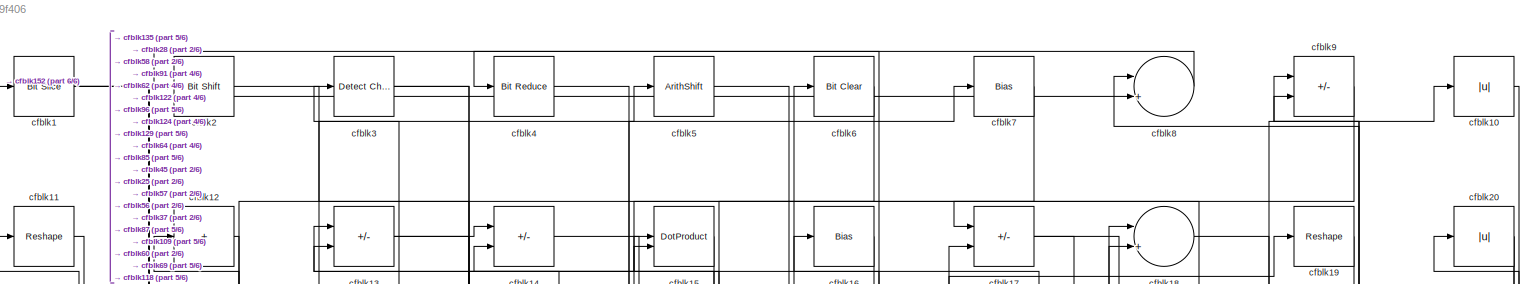
[diagram: root canvas - part 1/6, full width, top band]
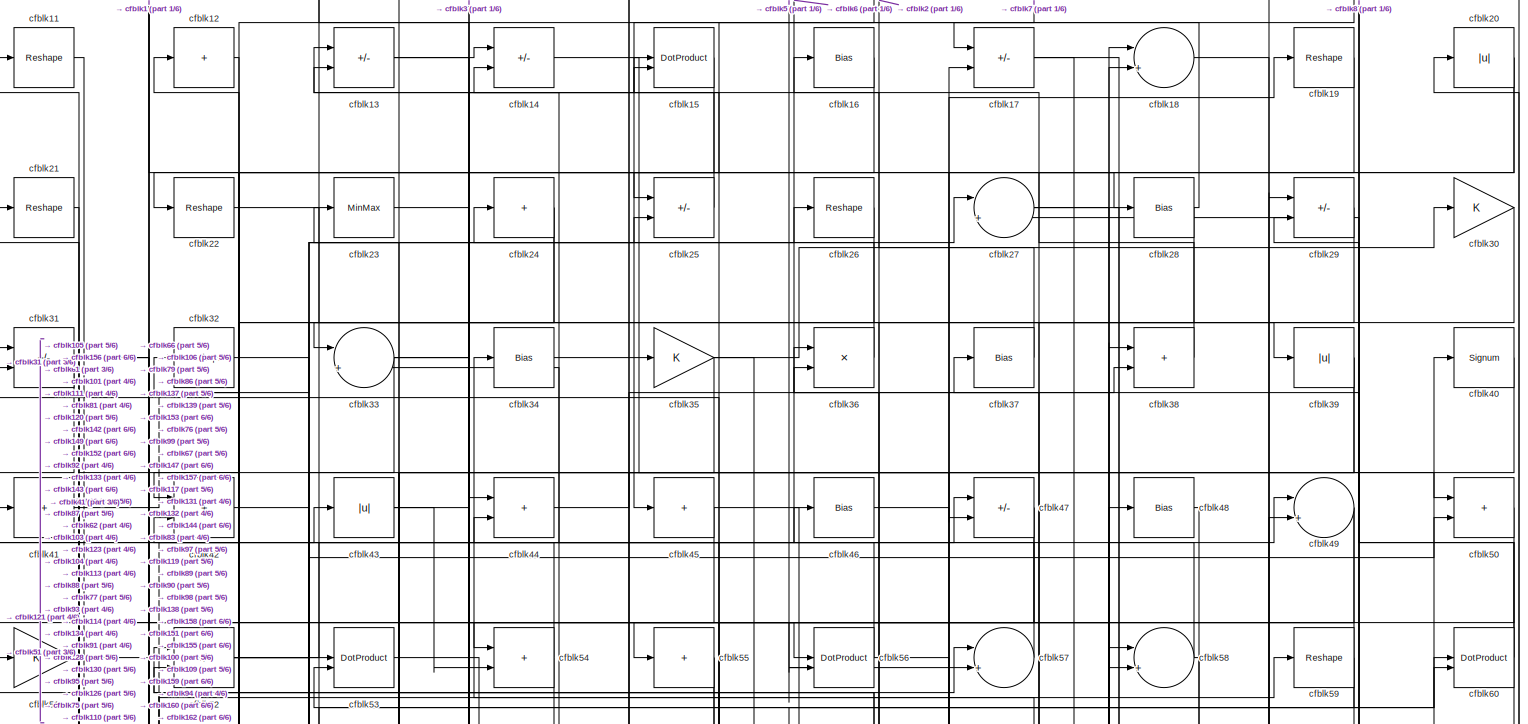
[diagram: root canvas - part 2/6, full width, top band]
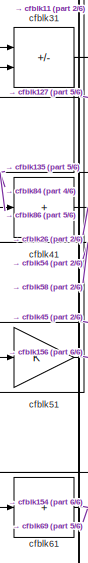
[diagram: root canvas - part 3/6, top left region]
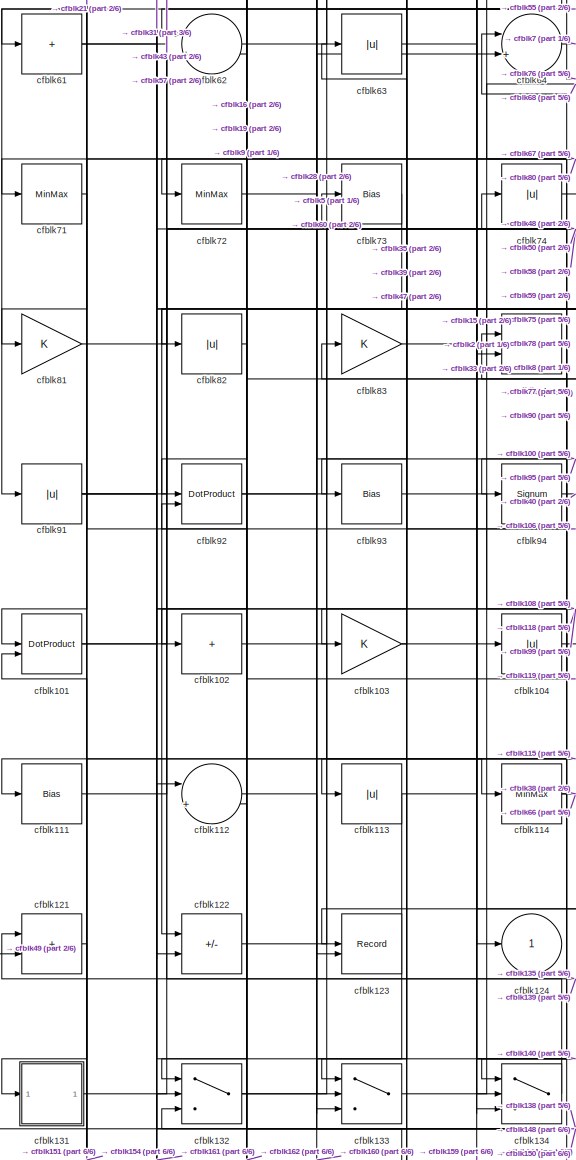
[diagram: root canvas - part 4/6, middle left region]
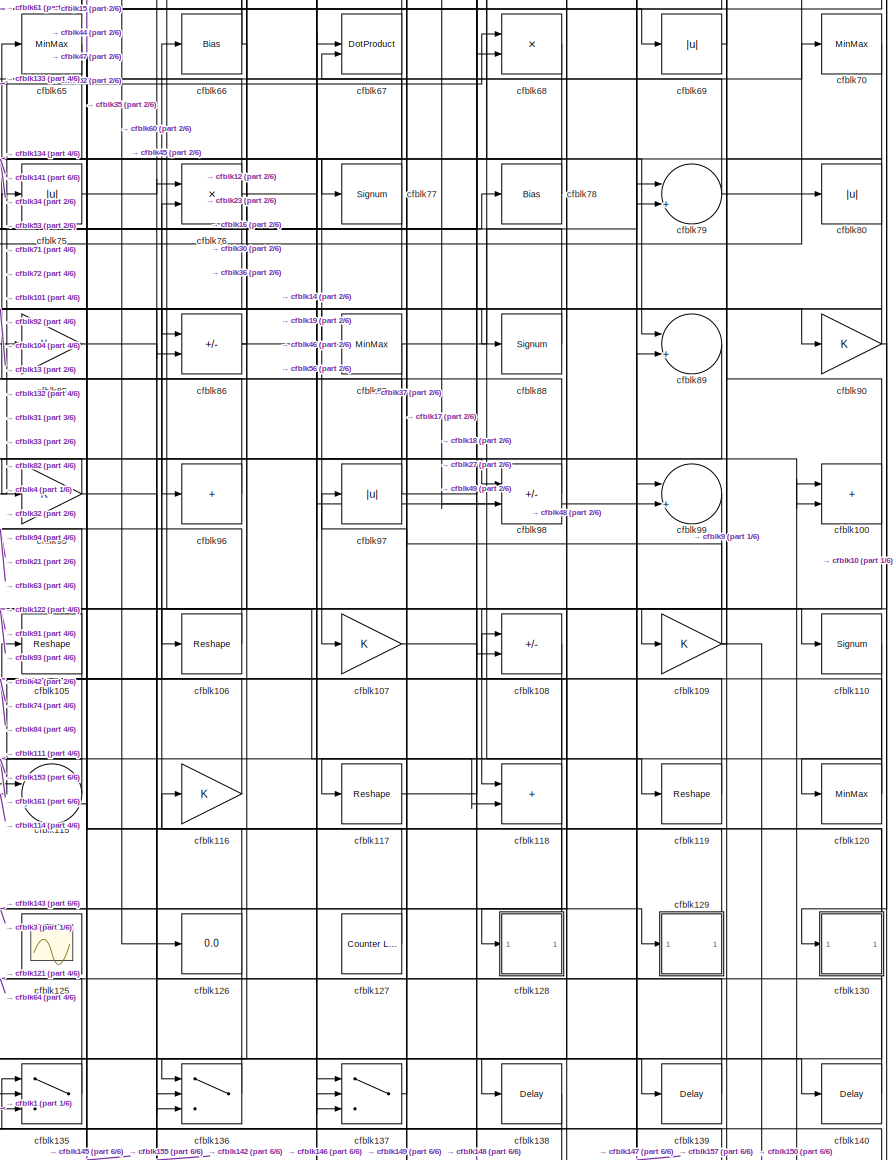
[diagram: root canvas - part 5/6, middle right region]
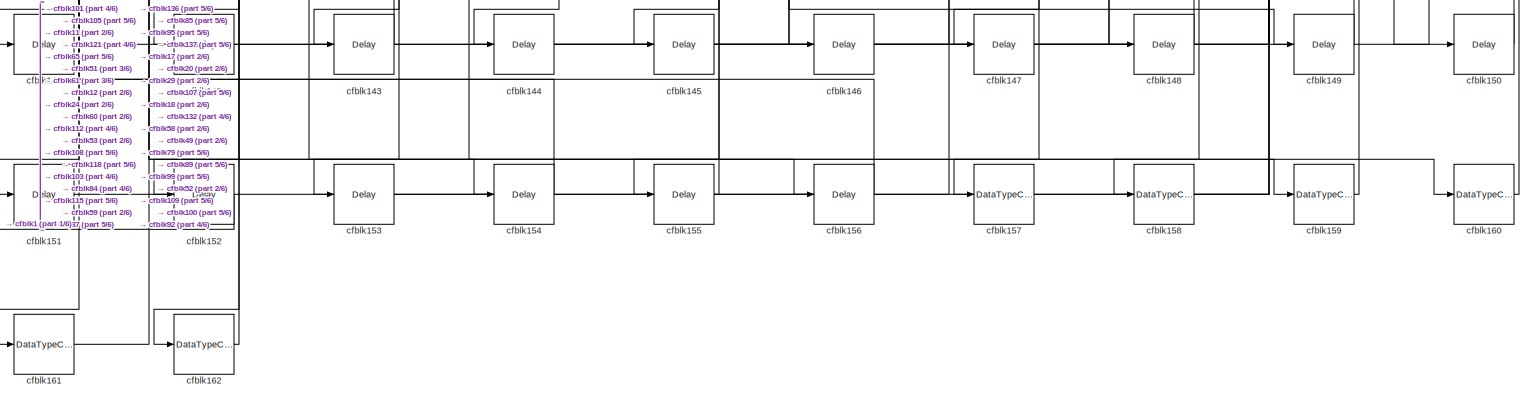
[diagram: root canvas - part 6/6, full width, bottom band]
MODEL slx_f692e4e9f406
KIND model
CONFIG AbsTol = auto
CONFIG EnableMultiTasking = off
CONFIG FixedStep = auto
CONFIG MaxStep = auto
CONFIG MinStep = auto
CONFIG RelTol = 1e-3
CONFIG SampleTimeConstraint = Unconstrained
CONFIG SolverName = VariableStepAuto
CONFIG StartTime = 0.0
CONFIG StopTime = 10.0
BLOCK [Reference] cfblk1  REF=hdlsllib/Logic and Bit
Operations/Bit Slice
  SourceBlock = hdlsllib/Logic and Bit\nOperations/Bit Slice
  SourceType = Bit Slice
BLOCK [Abs] cfblk10
  SaturateOnIntegerOverflow = off
BLOCK [Sum] cfblk100
  IconShape = rectangular
BLOCK [DotProduct] cfblk101
  OutDataTypeStr = Inherit: Inherit via internal rule
BLOCK [Sum] cfblk102
  IconShape = rectangular
  Inputs = +
BLOCK [Gain] cfblk103
BLOCK [Abs] cfblk104
  SaturateOnIntegerOverflow = off
BLOCK [Reshape] cfblk105
BLOCK [Reshape] cfblk106
BLOCK [Gain] cfblk107
BLOCK [Sum] cfblk108
  IconShape = rectangular
  Inputs = +-
BLOCK [Gain] cfblk109
BLOCK [Reshape] cfblk11
BLOCK [Signum] cfblk110
BLOCK [Bias] cfblk111
  Bias = 0.0
  SaturateOnIntegerOverflow = off
BLOCK [Sum] cfblk112
  Inputs = |++
BLOCK [Abs] cfblk113
  SaturateOnIntegerOverflow = off
BLOCK [MinMax] cfblk114
BLOCK [Sum] cfblk115
  Inputs = |++
BLOCK [Gain] cfblk116
BLOCK [Reshape] cfblk117
BLOCK [Sum] cfblk118
  IconShape = rectangular
BLOCK [Reshape] cfblk119
BLOCK [Sum] cfblk12
  IconShape = rectangular
  Inputs = +
BLOCK [MinMax] cfblk120
BLOCK [Sum] cfblk121
  IconShape = rectangular
BLOCK [Sum] cfblk122
  IconShape = rectangular
  Inputs = +-
BLOCK [Record] cfblk123
  CompatibilityTag = XY
  FileSettingsInternal = {"entries":[{"content":{"excelSettings":{"content":{},"type":"Streamout.ExcelSettings"}},"type":"Streamout.FileSettingStorage","uuid":""}],"packageUris":["http:\/\/schema.mathworks.com\/mf0\/streamout_blocks\/R2020a"],"version":"1.0"}
  Layout = [1 1]
  SignalsInternal = {"entries":[{"content":{"signals":[{"content":{"blockPath":[],"dimensions":[1],"domain":"","lineColor":"#a2142f","plots":[1],"port":1,"signalID":5065,"signalName":"XY Graph:1"},"type":"RecordBlkView.Signal","uuid":""},{"content":{"blockPath":[],"dimensions":[1],"domain":"","lineColor":"#139fff","plots":[1],"port":2,"signalID":5068,"signalName":"XY Graph:2"},"type":"RecordBlkView.Signal","uuid":""}...<+146ch>
  VisualizationBindings = {"xyplotplugin":{"info":[{"series":[{"bindingParametersList":[{"parameter":"X-Axis","signalID":5065,"signalName":"XY Graph:1"},{"parameter":"Y-Axis","signalID":5068,"signalName":"XY Graph:2"}],"seriesID":46358}],"subplotID":1}]}}
  st = -1
BLOCK [Outport] cfblk124
  VectorParamsAs1DForOutWhenUnconnected = off
BLOCK [Scope] cfblk125
  Floating = on
  NumInputPorts = 1
  ScopeSpecificationString = Simulink.scopes.TimeScopeBlockCfg('CurrentConfiguration', extmgr.ConfigurationSet(extmgr.Configuration('Core','General UI',true,'FigureColor',[0.156862745098039 0.156862745098039 0.156862745098039]),extmgr.Configuration('Core','Source UI',true),extmgr.Configuration('Sources','WiredSimulink',true,'DataLoggingVariableName','ScopeData1','DataLoggingSaveFormat','StructureWithTime','DataLoggingLimitDat...<+2713ch>
BLOCK [Display] cfblk126
  Decimation = 1
BLOCK [Reference] cfblk127  REF=hdlsllib/Sources/Counter
Limited
  SourceBlock = hdlsllib/Sources/Counter\nLimited
  SourceType = Counter Limited
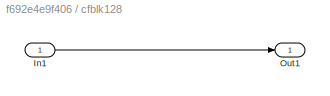
BLOCK [SubSystem] cfblk128
  LibrarySourceBlock = hdlsllib/Ports &\nSubsystems/Subsystem
BLOCK [Inport] cfblk128/In1
BLOCK [Outport] cfblk128/Out1
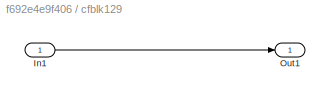
BLOCK [SubSystem] cfblk129
  LibrarySourceBlock = hdlsllib/Ports &\nSubsystems/Subsystem
BLOCK [Inport] cfblk129/In1
BLOCK [Outport] cfblk129/Out1
BLOCK [Sum] cfblk13
  IconShape = rectangular
  Inputs = +-
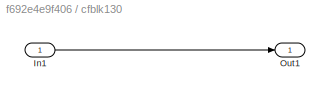
BLOCK [SubSystem] cfblk130
  LibrarySourceBlock = hdlsllib/Ports &\nSubsystems/Subsystem
BLOCK [Inport] cfblk130/In1
BLOCK [Outport] cfblk130/Out1
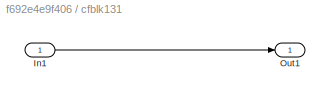
BLOCK [SubSystem] cfblk131
  LibrarySourceBlock = hdlsllib/Ports &\nSubsystems/Subsystem
BLOCK [Inport] cfblk131/In1
BLOCK [Outport] cfblk131/Out1
BLOCK [Switch] cfblk132
  InputSameDT = off
  SaturateOnIntegerOverflow = off
BLOCK [Switch] cfblk133
  InputSameDT = off
  SaturateOnIntegerOverflow = off
BLOCK [Switch] cfblk134
  InputSameDT = off
  SaturateOnIntegerOverflow = off
BLOCK [Switch] cfblk135
  InputSameDT = off
  SaturateOnIntegerOverflow = off
BLOCK [Switch] cfblk136
  InputSameDT = off
  SaturateOnIntegerOverflow = off
BLOCK [Switch] cfblk137
  InputSameDT = off
  SaturateOnIntegerOverflow = off
BLOCK [Delay] cfblk138
  InputPortMap = u0
  SampleTime = 1
BLOCK [Delay] cfblk139
  InputPortMap = u0
  SampleTime = 1
BLOCK [Sum] cfblk14
  IconShape = rectangular
  Inputs = +-
BLOCK [Delay] cfblk140
  InputPortMap = u0
  SampleTime = 1
BLOCK [Delay] cfblk141
  InputPortMap = u0
  SampleTime = 1
BLOCK [Delay] cfblk142
  InputPortMap = u0
  SampleTime = 1
BLOCK [Delay] cfblk143
  InputPortMap = u0
  SampleTime = 1
BLOCK [Delay] cfblk144
  InputPortMap = u0
  SampleTime = 1
BLOCK [Delay] cfblk145
  InputPortMap = u0
  SampleTime = 1
BLOCK [Delay] cfblk146
  InputPortMap = u0
  SampleTime = 1
BLOCK [Delay] cfblk147
  InputPortMap = u0
  SampleTime = 1
BLOCK [Delay] cfblk148
  InputPortMap = u0
  SampleTime = 1
BLOCK [Delay] cfblk149
  InputPortMap = u0
  SampleTime = 1
BLOCK [DotProduct] cfblk15
  OutDataTypeStr = Inherit: Inherit via internal rule
BLOCK [Delay] cfblk150
  InputPortMap = u0
  SampleTime = 1
BLOCK [Delay] cfblk151
  InputPortMap = u0
  SampleTime = 1
BLOCK [Delay] cfblk152
  InputPortMap = u0
  SampleTime = 1
BLOCK [Delay] cfblk153
  InputPortMap = u0
  SampleTime = 1
BLOCK [Delay] cfblk154
  InputPortMap = u0
  SampleTime = 1
BLOCK [Delay] cfblk155
  InputPortMap = u0
  SampleTime = 1
BLOCK [Delay] cfblk156
  InputPortMap = u0
  SampleTime = 1
BLOCK [DataTypeConversion] cfblk157
  OutDataTypeStr = uint8
  RndMeth = Floor
  SaturateOnIntegerOverflow = off
BLOCK [DataTypeConversion] cfblk158
  OutDataTypeStr = uint8
  RndMeth = Floor
  SaturateOnIntegerOverflow = off
BLOCK [DataTypeConversion] cfblk159
  OutDataTypeStr = uint8
  RndMeth = Floor
  SaturateOnIntegerOverflow = off
BLOCK [Bias] cfblk16
  Bias = 0.0
  SaturateOnIntegerOverflow = off
BLOCK [DataTypeConversion] cfblk160
  OutDataTypeStr = uint8
  RndMeth = Floor
  SaturateOnIntegerOverflow = off
BLOCK [DataTypeConversion] cfblk161
  OutDataTypeStr = uint8
  RndMeth = Floor
  SaturateOnIntegerOverflow = off
BLOCK [DataTypeConversion] cfblk162
  OutDataTypeStr = uint8
  RndMeth = Floor
  SaturateOnIntegerOverflow = off
BLOCK [Sum] cfblk17
  IconShape = rectangular
  Inputs = +-
BLOCK [Sum] cfblk18
  Inputs = |++
BLOCK [Reshape] cfblk19
BLOCK [Reference] cfblk2  REF=hdlsllib/Logic and Bit
Operations/Bit Shift
  SourceBlock = hdlsllib/Logic and Bit\nOperations/Bit Shift
  SourceType = Bit Shift
BLOCK [Abs] cfblk20
  SaturateOnIntegerOverflow = off
BLOCK [Reshape] cfblk21
BLOCK [Reshape] cfblk22
BLOCK [MinMax] cfblk23
BLOCK [Sum] cfblk24
  IconShape = rectangular
  Inputs = +
BLOCK [Sum] cfblk25
  IconShape = rectangular
  Inputs = +-
BLOCK [Reshape] cfblk26
BLOCK [Sum] cfblk27
  Inputs = |++
BLOCK [Bias] cfblk28
  Bias = 0.0
  SaturateOnIntegerOverflow = off
BLOCK [Sum] cfblk29
  IconShape = rectangular
  Inputs = +-
BLOCK [Reference] cfblk3  REF=simulink/Logic and Bit
Operations/Detect
Change
  LibrarySourceBlock = hdlsllib/Logic and Bit\nOperations/Detect\nChange
  SourceBlock = simulink/Logic and Bit\nOperations/Detect\nChange
  SourceType = Detect Change
BLOCK [Gain] cfblk30
BLOCK [Sum] cfblk31
  IconShape = rectangular
  Inputs = +-
BLOCK [Reshape] cfblk32
BLOCK [Sum] cfblk33
  Inputs = |++
BLOCK [Bias] cfblk34
  Bias = 0.0
  SaturateOnIntegerOverflow = off
BLOCK [Gain] cfblk35
BLOCK [Product] cfblk36
  Inputs = */
  RndMeth = Zero
  SaturateOnIntegerOverflow = on
BLOCK [Bias] cfblk37
  Bias = 0.0
  SaturateOnIntegerOverflow = off
BLOCK [Sum] cfblk38
  IconShape = rectangular
BLOCK [Abs] cfblk39
  SaturateOnIntegerOverflow = off
BLOCK [Reference] cfblk4  REF=hdlsllib/Logic and Bit
Operations/Bit Reduce
  SourceBlock = hdlsllib/Logic and Bit\nOperations/Bit Reduce
  SourceType = Bit Reduce
BLOCK [Signum] cfblk40
BLOCK [Sum] cfblk41
  IconShape = rectangular
  Inputs = +
BLOCK [Sum] cfblk42
  IconShape = rectangular
BLOCK [Abs] cfblk43
  SaturateOnIntegerOverflow = off
BLOCK [Sum] cfblk44
  IconShape = rectangular
BLOCK [Sum] cfblk45
  IconShape = rectangular
  Inputs = +
BLOCK [Bias] cfblk46
  Bias = 0.0
  SaturateOnIntegerOverflow = off
BLOCK [Sum] cfblk47
  IconShape = rectangular
  Inputs = +-
BLOCK [Bias] cfblk48
  Bias = 0.0
  SaturateOnIntegerOverflow = off
BLOCK [Sum] cfblk49
  Inputs = |++
BLOCK [ArithShift] cfblk5
  BitShiftNumber = 8
  InputPortMap = u0
BLOCK [Sum] cfblk50
  IconShape = rectangular
BLOCK [Gain] cfblk51
BLOCK [Sum] cfblk52
  IconShape = rectangular
  Inputs = +-
BLOCK [DotProduct] cfblk53
  OutDataTypeStr = Inherit: Inherit via internal rule
BLOCK [Sum] cfblk54
  IconShape = rectangular
BLOCK [Sum] cfblk55
  IconShape = rectangular
  Inputs = +
BLOCK [DotProduct] cfblk56
  OutDataTypeStr = Inherit: Inherit via internal rule
BLOCK [Sum] cfblk57
  Inputs = |++
BLOCK [Sum] cfblk58
  Inputs = |++
BLOCK [Reshape] cfblk59
BLOCK [Reference] cfblk6  REF=simulink/Logic and Bit
Operations/Bit Clear
  LibrarySourceBlock = hdlsllib/Logic and Bit\nOperations/Bit Clear
  SourceBlock = simulink/Logic and Bit\nOperations/Bit Clear
  SourceType = Bit Clear
BLOCK [DotProduct] cfblk60
  OutDataTypeStr = Inherit: Inherit via internal rule
BLOCK [Sum] cfblk61
  IconShape = rectangular
  Inputs = +
BLOCK [Sum] cfblk62
  Inputs = |++
BLOCK [Abs] cfblk63
  SaturateOnIntegerOverflow = off
BLOCK [Sum] cfblk64
  Inputs = |++
BLOCK [MinMax] cfblk65
BLOCK [Bias] cfblk66
  Bias = 0.0
  SaturateOnIntegerOverflow = off
BLOCK [DotProduct] cfblk67
  OutDataTypeStr = Inherit: Inherit via internal rule
BLOCK [Product] cfblk68
  Inputs = */
  RndMeth = Zero
  SaturateOnIntegerOverflow = on
BLOCK [Abs] cfblk69
  SaturateOnIntegerOverflow = off
BLOCK [Bias] cfblk7
  Bias = 0.0
  SaturateOnIntegerOverflow = off
BLOCK [MinMax] cfblk70
BLOCK [MinMax] cfblk71
BLOCK [MinMax] cfblk72
BLOCK [Bias] cfblk73
  Bias = 0.0
  SaturateOnIntegerOverflow = off
BLOCK [Abs] cfblk74
  SaturateOnIntegerOverflow = off
BLOCK [Abs] cfblk75
  SaturateOnIntegerOverflow = off
BLOCK [Product] cfblk76
  Inputs = */
  RndMeth = Zero
  SaturateOnIntegerOverflow = on
BLOCK [Signum] cfblk77
BLOCK [Bias] cfblk78
  Bias = 0.0
  SaturateOnIntegerOverflow = off
BLOCK [Sum] cfblk79
  Inputs = |++
BLOCK [Sum] cfblk8
  Inputs = |++
BLOCK [Abs] cfblk80
  SaturateOnIntegerOverflow = off
BLOCK [Gain] cfblk81
BLOCK [Abs] cfblk82
  SaturateOnIntegerOverflow = off
BLOCK [Gain] cfblk83
BLOCK [Product] cfblk84
  Inputs = */
  RndMeth = Zero
  SaturateOnIntegerOverflow = on
BLOCK [Gain] cfblk85
BLOCK [Sum] cfblk86
  IconShape = rectangular
  Inputs = +-
BLOCK [MinMax] cfblk87
BLOCK [Signum] cfblk88
BLOCK [Sum] cfblk89
  Inputs = |++
BLOCK [Sum] cfblk9
  IconShape = rectangular
  Inputs = +-
BLOCK [Gain] cfblk90
BLOCK [Abs] cfblk91
  SaturateOnIntegerOverflow = off
BLOCK [DotProduct] cfblk92
  OutDataTypeStr = Inherit: Inherit via internal rule
BLOCK [Bias] cfblk93
  Bias = 0.0
  SaturateOnIntegerOverflow = off
BLOCK [Signum] cfblk94
BLOCK [Gain] cfblk95
BLOCK [Sum] cfblk96
  IconShape = rectangular
  Inputs = +
BLOCK [Abs] cfblk97
  SaturateOnIntegerOverflow = off
BLOCK [Sum] cfblk98
  IconShape = rectangular
  Inputs = +-
BLOCK [Sum] cfblk99
  Inputs = |++
NET cfblk100:1 -> cfblk128:1, cfblk27:2
NET cfblk101:1 -> cfblk59:1, cfblk75:1
LINE cfblk102:1 -> cfblk114:1
NET cfblk103:1 -> cfblk159:1, cfblk83:1
LINE cfblk104:1 -> cfblk80:1
NET cfblk105:1 -> cfblk161:1, cfblk21:1
LINE cfblk106:1 -> cfblk63:1
LINE cfblk107:1 -> cfblk148:1
LINE cfblk108:1 -> cfblk153:1
NET cfblk109:1 -> cfblk150:1, cfblk37:1, cfblk9:1
LINE cfblk10:1 -> cfblk118:1
LINE cfblk110:1 -> cfblk120:1
LINE cfblk111:1 -> cfblk43:1
LINE cfblk112:1 -> cfblk160:1
NET cfblk113:1 -> cfblk133:3, cfblk15:1
NET cfblk114:1 -> cfblk38:2, cfblk66:1
LINE cfblk115:1 -> cfblk111:1
LINE cfblk116:1 -> cfblk105:1
LINE cfblk117:1 -> cfblk49:1
NET cfblk118:1 -> cfblk143:1, cfblk84:1
LINE cfblk119:1 -> cfblk74:1
LINE cfblk11:1 -> cfblk51:1
NET cfblk120:1 -> cfblk117:1, cfblk42:2
LINE cfblk121:1 -> cfblk151:1
LINE cfblk122:1 -> cfblk5:1
LINE cfblk127:1 -> cfblk31:1
LINE cfblk128/In1:1 -> cfblk128/Out1:1
LINE cfblk128:1 -> cfblk52:1
LINE cfblk129/In1:1 -> cfblk129/Out1:1
LINE cfblk129:1 -> cfblk108:1
LINE cfblk12:1 -> cfblk152:1
LINE cfblk130/In1:1 -> cfblk130/Out1:1
NET cfblk130:1 -> cfblk116:1, cfblk135:2, cfblk44:2
LINE cfblk131/In1:1 -> cfblk131/Out1:1
LINE cfblk131:1 -> cfblk58:1
NET cfblk132:1 -> cfblk48:1, cfblk64:2
LINE cfblk133:1 -> cfblk68:1
LINE cfblk134:1 -> cfblk73:1
LINE cfblk135:1 -> cfblk121:1
LINE cfblk136:1 -> cfblk76:2
LINE cfblk137:1 -> cfblk97:1
LINE cfblk138:1 -> cfblk132:3
LINE cfblk139:1 -> cfblk64:1
NET cfblk13:1 -> cfblk14:1, cfblk88:1
LINE cfblk140:1 -> cfblk76:1
LINE cfblk141:1 -> cfblk89:2
LINE cfblk142:1 -> cfblk136:2
LINE cfblk143:1 -> cfblk53:1
LINE cfblk144:1 -> cfblk18:1
LINE cfblk145:1 -> cfblk137:2
LINE cfblk146:1 -> cfblk100:1
LINE cfblk147:1 -> cfblk79:1
LINE cfblk148:1 -> cfblk132:2
LINE cfblk149:1 -> cfblk52:2
LINE cfblk14:1 -> cfblk137:1
LINE cfblk150:1 -> cfblk92:2
LINE cfblk151:1 -> cfblk49:2
LINE cfblk152:1 -> cfblk1:1
LINE cfblk153:1 -> cfblk17:2
LINE cfblk154:1 -> cfblk101:2
LINE cfblk155:1 -> cfblk115:2
LINE cfblk156:1 -> cfblk11:1
LINE cfblk157:1 -> cfblk99:1
LINE cfblk158:1 -> cfblk29:1
LINE cfblk159:1 -> cfblk29:2
LINE cfblk15:1 -> cfblk22:1
LINE cfblk160:1 -> cfblk20:1
LINE cfblk161:1 -> cfblk112:1
LINE cfblk162:1 -> cfblk112:2
LINE cfblk16:1 -> cfblk62:2
NET cfblk17:1 -> cfblk119:1, cfblk98:2
LINE cfblk18:1 -> cfblk79:2
LINE cfblk19:1 -> cfblk92:1
NET cfblk1:1 -> cfblk135:3, cfblk28:1, cfblk58:2
NET cfblk20:1 -> cfblk147:1, cfblk47:2
LINE cfblk21:1 -> cfblk81:1
LINE cfblk22:1 -> cfblk39:1
LINE cfblk23:1 -> cfblk44:1
NET cfblk24:1 -> cfblk142:1, cfblk42:1
LINE cfblk25:1 -> cfblk13:1
LINE cfblk26:1 -> cfblk33:1
NET cfblk27:1 -> cfblk89:1, cfblk90:1
NET cfblk28:1 -> cfblk133:2, cfblk17:1
LINE cfblk29:1 -> cfblk157:1
LINE cfblk2:1 -> cfblk124:1
LINE cfblk30:1 -> cfblk106:1
NET cfblk31:1 -> cfblk135:1, cfblk84:2, cfblk86:2
LINE cfblk32:1 -> cfblk68:2
NET cfblk33:1 -> cfblk131:1, cfblk137:3, cfblk86:1
LINE cfblk34:1 -> cfblk35:1
NET cfblk35:1 -> cfblk103:1, cfblk126:1, cfblk30:1
LINE cfblk36:1 -> cfblk24:1
LINE cfblk37:1 -> cfblk2:1
LINE cfblk38:1 -> cfblk13:2
NET cfblk39:1 -> cfblk123:1, cfblk123:2
NET cfblk3:1 -> cfblk129:1, cfblk56:1
LINE cfblk40:1 -> cfblk113:1
LINE cfblk41:1 -> cfblk26:1
LINE cfblk42:1 -> cfblk87:1
NET cfblk43:1 -> cfblk104:1, cfblk54:2
LINE cfblk44:1 -> cfblk50:1
NET cfblk45:1 -> cfblk110:1, cfblk61:1
LINE cfblk46:1 -> cfblk139:1
NET cfblk47:1 -> cfblk133:1, cfblk95:1
LINE cfblk48:1 -> cfblk138:1
NET cfblk49:1 -> cfblk121:2, cfblk55:1
LINE cfblk4:1 -> cfblk85:1
LINE cfblk50:1 -> cfblk56:2
LINE cfblk51:1 -> cfblk156:1
NET cfblk52:1 -> cfblk25:2, cfblk27:1, cfblk46:1, cfblk47:1
LINE cfblk53:1 -> cfblk77:1
NET cfblk54:1 -> cfblk41:1, cfblk93:1
NET cfblk55:1 -> cfblk134:3, cfblk91:1
NET cfblk56:1 -> cfblk6:1, cfblk99:2
LINE cfblk57:1 -> cfblk14:2
NET cfblk58:1 -> cfblk158:1, cfblk31:2
NET cfblk59:1 -> cfblk155:1, cfblk53:2, cfblk54:1
LINE cfblk5:1 -> cfblk57:2
NET cfblk60:1 -> cfblk162:1, cfblk36:1, cfblk8:1
NET cfblk61:1 -> cfblk154:1, cfblk69:1
LINE cfblk62:1 -> cfblk60:1
LINE cfblk63:1 -> cfblk140:1
LINE cfblk64:1 -> cfblk7:1
LINE cfblk65:1 -> cfblk141:1
NET cfblk66:1 -> cfblk12:1, cfblk136:1, cfblk23:1
NET cfblk67:1 -> cfblk134:1, cfblk34:1
LINE cfblk68:1 -> cfblk107:1
LINE cfblk69:1 -> cfblk9:2
LINE cfblk6:1 -> cfblk25:1
LINE cfblk70:1 -> cfblk109:1
LINE cfblk71:1 -> cfblk101:1
LINE cfblk72:1 -> cfblk100:2
LINE cfblk73:1 -> cfblk122:1
LINE cfblk74:1 -> cfblk115:1
LINE cfblk75:1 -> cfblk60:2
NET cfblk76:1 -> cfblk134:2, cfblk19:1, cfblk33:2
NET cfblk77:1 -> cfblk132:1, cfblk67:2
LINE cfblk78:1 -> cfblk72:1
NET cfblk79:1 -> cfblk36:2, cfblk70:1
LINE cfblk7:1 -> cfblk45:1
NET cfblk80:1 -> cfblk71:1, cfblk96:1
LINE cfblk81:1 -> cfblk57:1
LINE cfblk82:1 -> cfblk102:1
LINE cfblk83:1 -> cfblk38:1
LINE cfblk84:1 -> cfblk144:1
LINE cfblk85:1 -> cfblk146:1
NET cfblk86:1 -> cfblk16:1, cfblk98:1
NET cfblk87:1 -> cfblk10:1, cfblk145:1
LINE cfblk88:1 -> cfblk15:2
LINE cfblk89:1 -> cfblk136:3
LINE cfblk8:1 -> cfblk4:1
NET cfblk90:1 -> cfblk130:1, cfblk82:1
NET cfblk91:1 -> cfblk108:2, cfblk78:1, cfblk8:2
NET cfblk92:1 -> cfblk50:2, cfblk67:1
LINE cfblk93:1 -> cfblk118:2
LINE cfblk94:1 -> cfblk40:1
NET cfblk95:1 -> cfblk149:1, cfblk94:1
LINE cfblk96:1 -> cfblk3:1
NET cfblk97:1 -> cfblk18:2, cfblk65:1
LINE cfblk98:1 -> cfblk32:1
LINE cfblk99:1 -> cfblk122:2
LINE cfblk9:1 -> cfblk62:1
note: NET lines group one-source signal fan-out (src -> all destinations, sorted); 1:1 wires keep LINE
